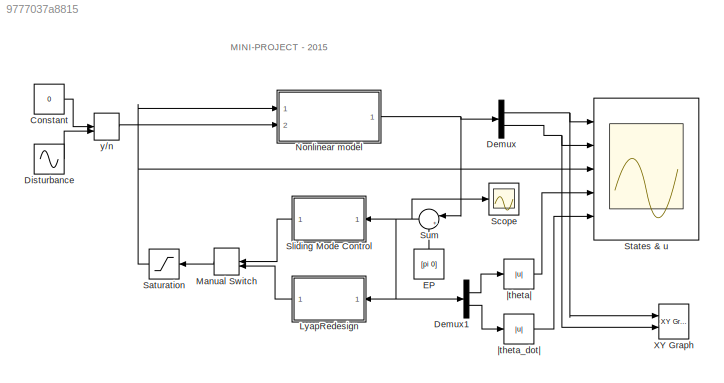
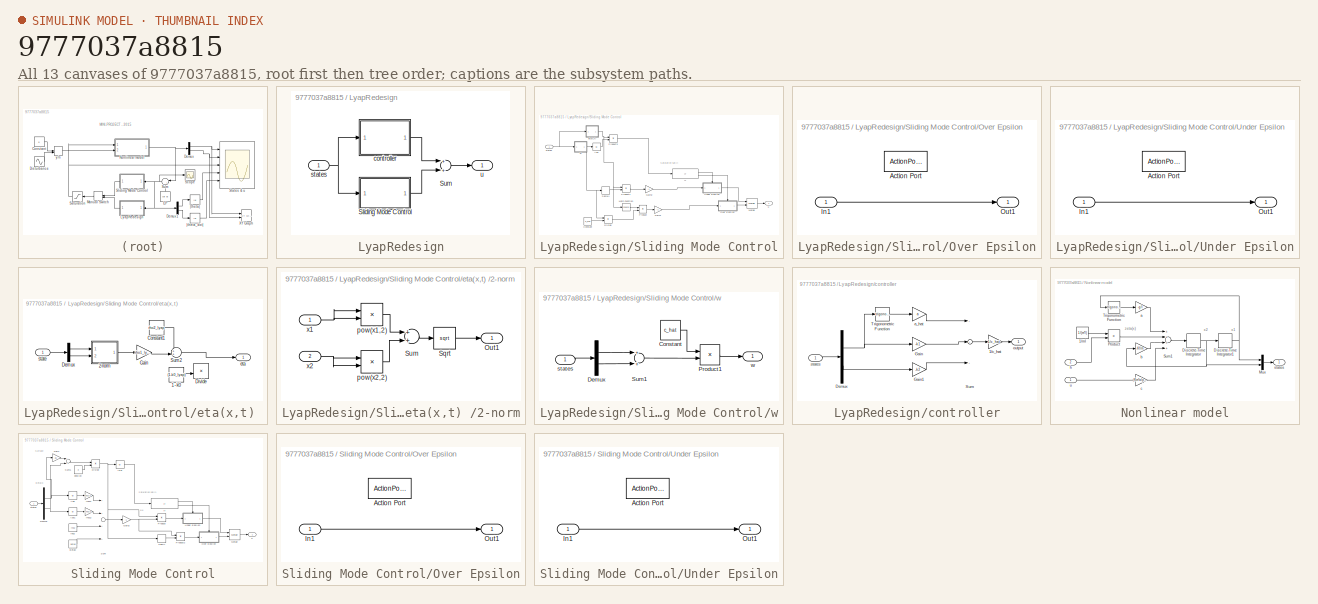
[diagram: thumbnail index - all 13 canvases of the model, root first then tree order]
MODEL slx_9777037a8815
KIND model
CONFIG AbsTol = auto
CONFIG FixedStep = auto
CONFIG InitFcn = run smc.m\nrun lyapRedesign.m 
CONFIG MaxStep = auto
CONFIG MinStep = auto
CONFIG RelTol = 1e-3
CONFIG SampleTimeConstraint = Unconstrained
CONFIG Solver = VariableStepAuto
CONFIG SolverMode = Auto
CONFIG SolverName = VariableStepAuto
CONFIG StartTime = 0.0
CONFIG StopTime = 10
BLOCK [Constant] Constant
  Value = 0
BLOCK [Demux] Demux
  DisplayOption = bar
  Outputs = 2
  Ports = [1, 2]
BLOCK [Demux] Demux1
  DisplayOption = bar
  Outputs = 2
  Ports = [1, 2]
BLOCK [Sin] Disturbance
  Amplitude = Km*A*5/2000
  Ports = [0, 1]
  SampleTime = 0
BLOCK [Constant] EP
  Value = [pi 0]
BLOCK [SubSystem] LyapRedesign
  Ports = [1, 1]
  RequestExecContextInheritance = off
  Variant = off
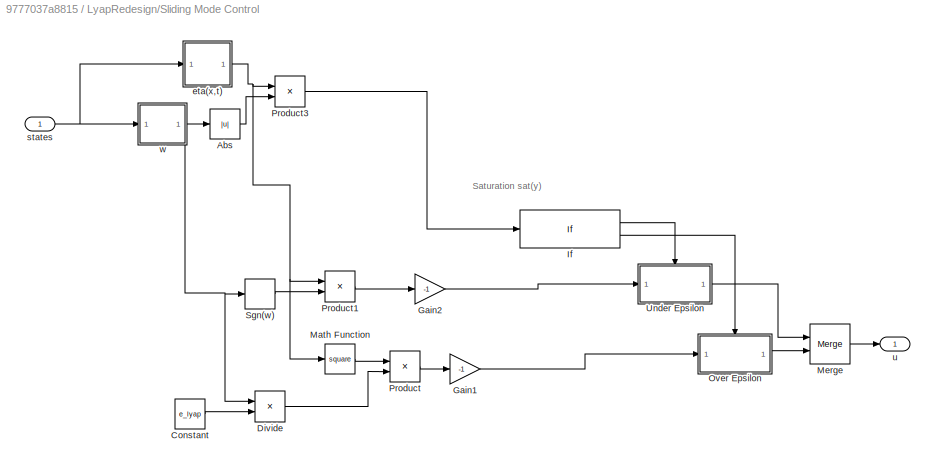
BLOCK [SubSystem] LyapRedesign/Sliding Mode Control
  Ports = [1, 1]
  RequestExecContextInheritance = off
  Variant = off
BLOCK [Abs] LyapRedesign/Sliding Mode Control/Abs
  SaturateOnIntegerOverflow = off
BLOCK [Constant] LyapRedesign/Sliding Mode Control/Constant
  Value = e_lyap
BLOCK [Product] LyapRedesign/Sliding Mode Control/Divide
  InputSameDT = off
  Inputs = */
  OutDataTypeStr = Inherit: Inherit via internal rule
  Ports = [2, 1]
  RndMeth = Floor
  SaturateOnIntegerOverflow = off
BLOCK [Gain] LyapRedesign/Sliding Mode Control/Gain1
  Gain = -1
  OutDataTypeStr = Inherit: Inherit via internal rule
  ParamDataTypeStr = Inherit: Inherit via internal rule
  SaturateOnIntegerOverflow = off
BLOCK [Gain] LyapRedesign/Sliding Mode Control/Gain2
  Gain = -1
  OutDataTypeStr = Inherit: Inherit via internal rule
  ParamDataTypeStr = Inherit: Inherit via internal rule
  SaturateOnIntegerOverflow = off
BLOCK [If] LyapRedesign/Sliding Mode Control/If
  ElseIfExpressions = u1 < e_lyap
  IfExpression = u1 >= e_lyap
  Ports = [1, 2]
  ShowElse = off
  ZeroCross = off
BLOCK [Math] LyapRedesign/Sliding Mode Control/Math Function
  Operator = square
  Ports = [1, 1]
BLOCK [Merge] LyapRedesign/Sliding Mode Control/Merge
  Ports = [2, 1]
BLOCK [SubSystem] LyapRedesign/Sliding Mode Control/Over Epsilon
  Ports = [1, 1, 0, 0, 0, 0, 0, 1]
  RequestExecContextInheritance = off
  TreatAsAtomicUnit = on
  Variant = off
BLOCK [ActionPort] LyapRedesign/Sliding Mode Control/Over Epsilon/Action Port
  ActionType = elseif
BLOCK [Inport] LyapRedesign/Sliding Mode Control/Over Epsilon/In1
  IconDisplay = Port number
BLOCK [Outport] LyapRedesign/Sliding Mode Control/Over Epsilon/Out1
  IconDisplay = Port number
BLOCK [Product] LyapRedesign/Sliding Mode Control/Product
  InputSameDT = off
  OutDataTypeStr = Inherit: Inherit via internal rule
  Ports = [2, 1]
  RndMeth = Floor
  SaturateOnIntegerOverflow = off
BLOCK [Product] LyapRedesign/Sliding Mode Control/Product1
  InputSameDT = off
  OutDataTypeStr = Inherit: Inherit via internal rule
  Ports = [2, 1]
  RndMeth = Floor
  SaturateOnIntegerOverflow = off
BLOCK [Product] LyapRedesign/Sliding Mode Control/Product3
  InputSameDT = off
  OutDataTypeStr = Inherit: Inherit via internal rule
  Ports = [2, 1]
  RndMeth = Floor
  SaturateOnIntegerOverflow = off
BLOCK [Signum] LyapRedesign/Sliding Mode Control/Sgn(w)
BLOCK [SubSystem] LyapRedesign/Sliding Mode Control/Under Epsilon
  Ports = [1, 1, 0, 0, 0, 0, 0, 1]
  RequestExecContextInheritance = off
  TreatAsAtomicUnit = on
  Variant = off
BLOCK [ActionPort] LyapRedesign/Sliding Mode Control/Under Epsilon/Action Port
  ActionType = then
BLOCK [Inport] LyapRedesign/Sliding Mode Control/Under Epsilon/In1
  IconDisplay = Port number
BLOCK [Outport] LyapRedesign/Sliding Mode Control/Under Epsilon/Out1
  IconDisplay = Port number
BLOCK [SubSystem] LyapRedesign/Sliding Mode Control/eta(x,t) 
  Ports = [1, 1]
  RequestExecContextInheritance = off
  Variant = off
BLOCK [Constant] LyapRedesign/Sliding Mode Control/eta(x,t) /1 - k0
  Value = (1-k0_lyap)
BLOCK [SubSystem] LyapRedesign/Sliding Mode Control/eta(x,t) /2-norm
  Ports = [2, 1]
  RequestExecContextInheritance = off
  Variant = off
BLOCK [Outport] LyapRedesign/Sliding Mode Control/eta(x,t) /2-norm/Out1
  IconDisplay = Port number
BLOCK [Sqrt] LyapRedesign/Sliding Mode Control/eta(x,t) /2-norm/Sqrt
BLOCK [Sum] LyapRedesign/Sliding Mode Control/eta(x,t) /2-norm/Sum
  InputSameDT = off
  OutDataTypeStr = Inherit: Inherit via internal rule
  Ports = [2, 1]
  SaturateOnIntegerOverflow = off
BLOCK [Product] LyapRedesign/Sliding Mode Control/eta(x,t) /2-norm/pow(x1,2)
  InputSameDT = off
  OutDataTypeStr = Inherit: Inherit via internal rule
  Ports = [2, 1]
  RndMeth = Floor
  SaturateOnIntegerOverflow = off
BLOCK [Product] LyapRedesign/Sliding Mode Control/eta(x,t) /2-norm/pow(x2,2)
  InputSameDT = off
  OutDataTypeStr = Inherit: Inherit via internal rule
  Ports = [2, 1]
  RndMeth = Floor
  SaturateOnIntegerOverflow = off
BLOCK [Inport] LyapRedesign/Sliding Mode Control/eta(x,t) /2-norm/x1
  IconDisplay = Port number
BLOCK [Inport] LyapRedesign/Sliding Mode Control/eta(x,t) /2-norm/x2
  IconDisplay = Port number
  Port = 2
BLOCK [Constant] LyapRedesign/Sliding Mode Control/eta(x,t) /Constant1
  Value = rho2_lyap
BLOCK [Demux] LyapRedesign/Sliding Mode Control/eta(x,t) /Demux
  DisplayOption = bar
  Outputs = 2
  Ports = [1, 2]
BLOCK [Product] LyapRedesign/Sliding Mode Control/eta(x,t) /Divide
  InputSameDT = off
  Inputs = */
  OutDataTypeStr = Inherit: Inherit via internal rule
  Ports = [2, 1]
  RndMeth = Floor
  SaturateOnIntegerOverflow = off
BLOCK [Gain] LyapRedesign/Sliding Mode Control/eta(x,t) /Gain
  Gain = rho1_lyap
  OutDataTypeStr = Inherit: Inherit via internal rule
  ParamDataTypeStr = Inherit: Inherit via internal rule
  SaturateOnIntegerOverflow = off
BLOCK [Sum] LyapRedesign/Sliding Mode Control/eta(x,t) /Sum2
  IconShape = round
  InputSameDT = off
  Inputs = ++|
  OutDataTypeStr = Inherit: Inherit via internal rule
  Ports = [2, 1]
  SaturateOnIntegerOverflow = off
BLOCK [Outport] LyapRedesign/Sliding Mode Control/eta(x,t) /eta
  IconDisplay = Port number
BLOCK [Inport] LyapRedesign/Sliding Mode Control/eta(x,t) /state
  IconDisplay = Port number
BLOCK [Inport] LyapRedesign/Sliding Mode Control/states
  IconDisplay = Port number
BLOCK [Outport] LyapRedesign/Sliding Mode Control/u
  IconDisplay = Port number
BLOCK [SubSystem] LyapRedesign/Sliding Mode Control/w
  Ports = [1, 1]
  RequestExecContextInheritance = off
  Variant = off
BLOCK [Constant] LyapRedesign/Sliding Mode Control/w/Constant
  Value = c_hat
BLOCK [Demux] LyapRedesign/Sliding Mode Control/w/Demux
  DisplayOption = bar
  Outputs = 2
  Ports = [1, 2]
BLOCK [Product] LyapRedesign/Sliding Mode Control/w/Product1
  InputSameDT = off
  OutDataTypeStr = Inherit: Inherit via internal rule
  Ports = [2, 1]
  RndMeth = Floor
  SaturateOnIntegerOverflow = off
BLOCK [Sum] LyapRedesign/Sliding Mode Control/w/Sum1
  InputSameDT = off
  OutDataTypeStr = Inherit: Inherit via internal rule
  Ports = [2, 1]
  SaturateOnIntegerOverflow = off
BLOCK [Inport] LyapRedesign/Sliding Mode Control/w/states
  IconDisplay = Port number
BLOCK [Outport] LyapRedesign/Sliding Mode Control/w/w
  IconDisplay = Port number
BLOCK [Sum] LyapRedesign/Sum
  InputSameDT = off
  OutDataTypeStr = Inherit: Inherit via internal rule
  Ports = [2, 1]
  SaturateOnIntegerOverflow = off
BLOCK [SubSystem] LyapRedesign/controller
  Ports = [1, 1]
  RequestExecContextInheritance = off
  Variant = off
BLOCK [Gain] LyapRedesign/controller/1//c_hat
  Gain = 1/c_hat
  OutDataTypeStr = Inherit: Inherit via internal rule
  ParamDataTypeStr = Inherit: Inherit via internal rule
  SaturateOnIntegerOverflow = off
BLOCK [Demux] LyapRedesign/controller/Demux
  DisplayOption = bar
  Outputs = 2
  Ports = [1, 2]
BLOCK [Gain] LyapRedesign/controller/Gain
  Gain = -k1
  OutDataTypeStr = Inherit: Inherit via internal rule
  ParamDataTypeStr = Inherit: Inherit via internal rule
  SaturateOnIntegerOverflow = off
BLOCK [Gain] LyapRedesign/controller/Gain1
  Gain = -k2
  OutDataTypeStr = Inherit: Inherit via internal rule
  ParamDataTypeStr = Inherit: Inherit via internal rule
  SaturateOnIntegerOverflow = off
BLOCK [Sum] LyapRedesign/controller/Sum
  InputSameDT = off
  Inputs = +++
  OutDataTypeStr = Inherit: Inherit via internal rule
  Ports = [3, 1]
  SaturateOnIntegerOverflow = off
BLOCK [Trigonometry] LyapRedesign/controller/Trigonometric Function
  Ports = [1, 1]
BLOCK [Gain] LyapRedesign/controller/a_hat
  Gain = a
  OutDataTypeStr = Inherit: Inherit via internal rule
  ParamDataTypeStr = Inherit: Inherit via internal rule
  SaturateOnIntegerOverflow = off
BLOCK [Outport] LyapRedesign/controller/output
  IconDisplay = Port number
BLOCK [Inport] LyapRedesign/controller/states
  IconDisplay = Port number
BLOCK [Inport] LyapRedesign/states
  IconDisplay = Port number
BLOCK [Outport] LyapRedesign/u
  IconDisplay = Port number
BLOCK [ManualSwitch] Manual Switch
BLOCK [SubSystem] Nonlinear model
  Ports = [2, 1]
  RequestExecContextInheritance = off
  Variant = off
BLOCK [Constant] Nonlinear model/1//ml
  Value = 1/(m*l)
BLOCK [DiscreteIntegrator] Nonlinear model/Discrete-Time Integrator
  ICPrevOutput = DiscIntNeverNeededParam
  ICPrevScaledInput = DiscIntNeverNeededParam
  InitialConditionSetting = State (most efficient)
  Ports = [1, 1]
  SampleTime = dt
BLOCK [DiscreteIntegrator] Nonlinear model/Discrete-Time Integrator1
  ICPrevOutput = DiscIntNeverNeededParam
  ICPrevScaledInput = DiscIntNeverNeededParam
  InitialConditionSetting = State (most efficient)
  Ports = [1, 1]
  SampleTime = dt
BLOCK [Mux] Nonlinear model/Mux
  DisplayOption = bar
  Inputs = 2
  Ports = [2, 1]
BLOCK [Product] Nonlinear model/Product
  InputSameDT = off
  OutDataTypeStr = Inherit: Inherit via internal rule
  Ports = [2, 1]
  RndMeth = Floor
  SaturateOnIntegerOverflow = off
BLOCK [Sum] Nonlinear model/Sum1
  InputSameDT = off
  Inputs = ++++
  OutDataTypeStr = Inherit: Inherit via internal rule
  Ports = [4, 1]
  SaturateOnIntegerOverflow = off
BLOCK [Trigonometry] Nonlinear model/Trigonometric Function
  Ports = [1, 1]
BLOCK [Gain] Nonlinear model/a
  Gain = -g/l
  OutDataTypeStr = Inherit: Inherit via internal rule
  ParamDataTypeStr = Inherit: Inherit via internal rule
  SaturateOnIntegerOverflow = off
BLOCK [Gain] Nonlinear model/b
  Gain = -Kf/m
  OutDataTypeStr = Inherit: Inherit via internal rule
  ParamDataTypeStr = Inherit: Inherit via internal rule
  SaturateOnIntegerOverflow = off
BLOCK [Gain] Nonlinear model/c
  Gain = (Km*alpha)/(m*l^2)
  OutDataTypeStr = Inherit: Inherit via internal rule
  ParamDataTypeStr = Inherit: Inherit via internal rule
  SaturateOnIntegerOverflow = off
BLOCK [Inport] Nonlinear model/h
  IconDisplay = Port number
  Port = 2
BLOCK [Outport] Nonlinear model/states
  IconDisplay = Port number
BLOCK [Inport] Nonlinear model/u
  IconDisplay = Port number
BLOCK [Saturate] Saturation
  InputPortMap = u0
  LowerLimit = -2000
  Ports = [1, 1]
  UpperLimit = 2000
BLOCK [Scope] Scope
  Ports = [1]
  ScopeSpecificationString = Simulink.scopes.TimeScopeBlockCfg('CurrentConfiguration', extmgr.ConfigurationSet(extmgr.Configuration('Core','General UI',true),extmgr.Configuration('Core','Source UI',true),extmgr.Configuration('Sources','WiredSimulink',true,'DataLoggingVariableName','ScopeData1'),extmgr.Configuration('Visuals','Time Domain',true,'SerializedDisplays',{struct('MinYLimReal','-9.79224','MaxYLimReal','4.57868','YLab...<+1401ch>
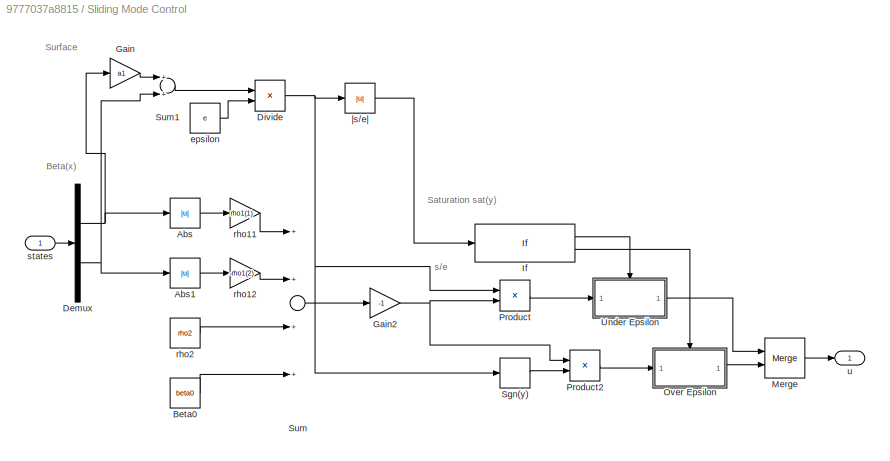
BLOCK [SubSystem] Sliding Mode Control
  Ports = [1, 1]
  RequestExecContextInheritance = off
  Variant = off
BLOCK [Abs] Sliding Mode Control/Abs
  SaturateOnIntegerOverflow = off
BLOCK [Abs] Sliding Mode Control/Abs1
  SaturateOnIntegerOverflow = off
BLOCK [Constant] Sliding Mode Control/Beta0
  Value = beta0
BLOCK [Demux] Sliding Mode Control/Demux
  DisplayOption = bar
  Outputs = 2
  Ports = [1, 2]
BLOCK [Product] Sliding Mode Control/Divide
  InputSameDT = off
  Inputs = */
  OutDataTypeStr = Inherit: Inherit via internal rule
  Ports = [2, 1]
  RndMeth = Floor
  SaturateOnIntegerOverflow = off
BLOCK [Gain] Sliding Mode Control/Gain
  Gain = a1
  OutDataTypeStr = Inherit: Inherit via internal rule
  ParamDataTypeStr = Inherit: Inherit via internal rule
  SaturateOnIntegerOverflow = off
BLOCK [Gain] Sliding Mode Control/Gain2
  Gain = -1
  OutDataTypeStr = Inherit: Inherit via internal rule
  ParamDataTypeStr = Inherit: Inherit via internal rule
  SaturateOnIntegerOverflow = off
BLOCK [If] Sliding Mode Control/If
  ElseIfExpressions = u1 > 1
  IfExpression = u1 <= 1
  Ports = [1, 2]
  ShowElse = off
  ZeroCross = off
BLOCK [Merge] Sliding Mode Control/Merge
  Ports = [2, 1]
BLOCK [SubSystem] Sliding Mode Control/Over Epsilon
  Ports = [1, 1, 0, 0, 0, 0, 0, 1]
  RequestExecContextInheritance = off
  TreatAsAtomicUnit = on
  Variant = off
BLOCK [ActionPort] Sliding Mode Control/Over Epsilon/Action Port
  ActionType = elseif
BLOCK [Inport] Sliding Mode Control/Over Epsilon/In1
  IconDisplay = Port number
BLOCK [Outport] Sliding Mode Control/Over Epsilon/Out1
  IconDisplay = Port number
BLOCK [Product] Sliding Mode Control/Product
  InputSameDT = off
  OutDataTypeStr = Inherit: Inherit via internal rule
  Ports = [2, 1]
  RndMeth = Floor
  SaturateOnIntegerOverflow = off
BLOCK [Product] Sliding Mode Control/Product2
  InputSameDT = off
  OutDataTypeStr = Inherit: Inherit via internal rule
  Ports = [2, 1]
  RndMeth = Floor
  SaturateOnIntegerOverflow = off
BLOCK [Signum] Sliding Mode Control/Sgn(y)
BLOCK [Sum] Sliding Mode Control/Sum
  InputSameDT = off
  Inputs = ++++
  OutDataTypeStr = Inherit: Inherit via internal rule
  Ports = [4, 1]
  SaturateOnIntegerOverflow = off
BLOCK [Sum] Sliding Mode Control/Sum1
  InputSameDT = off
  OutDataTypeStr = Inherit: Inherit via internal rule
  Ports = [2, 1]
  SaturateOnIntegerOverflow = off
BLOCK [SubSystem] Sliding Mode Control/Under Epsilon
  Ports = [1, 1, 0, 0, 0, 0, 0, 1]
  RequestExecContextInheritance = off
  TreatAsAtomicUnit = on
  Variant = off
BLOCK [ActionPort] Sliding Mode Control/Under Epsilon/Action Port
  ActionType = then
BLOCK [Inport] Sliding Mode Control/Under Epsilon/In1
  IconDisplay = Port number
BLOCK [Outport] Sliding Mode Control/Under Epsilon/Out1
  IconDisplay = Port number
BLOCK [Constant] Sliding Mode Control/epsilon
  Value = e
BLOCK [Gain] Sliding Mode Control/rho11
  Gain = rho1(1)
  OutDataTypeStr = Inherit: Inherit via internal rule
  ParamDataTypeStr = Inherit: Inherit via internal rule
  SaturateOnIntegerOverflow = off
BLOCK [Gain] Sliding Mode Control/rho12
  Gain = -rho1(2)
  OutDataTypeStr = Inherit: Inherit via internal rule
  ParamDataTypeStr = Inherit: Inherit via internal rule
  SaturateOnIntegerOverflow = off
BLOCK [Constant] Sliding Mode Control/rho2
  Value = rho2
BLOCK [Inport] Sliding Mode Control/states
  IconDisplay = Port number
BLOCK [Outport] Sliding Mode Control/u
  IconDisplay = Port number
BLOCK [Abs] Sliding Mode Control/|s//e|
  SaturateOnIntegerOverflow = off
BLOCK [Scope] States & u
  NumInputPorts = 5
  Ports = [5]
  ScopeSpecificationString = Simulink.scopes.TimeScopeBlockCfg('CurrentConfiguration', extmgr.ConfigurationSet(extmgr.Configuration('Core','General UI',true,'FigureColor',[1 1 1]),extmgr.Configuration('Core','Source UI',true),extmgr.Configuration('Sources','WiredSimulink',true),extmgr.Configuration('Visuals','Time Domain',true,'PlotType','Line','SerializedDisplays',{struct('MinYLimReal','-0.43682','MaxYLimReal','3.93141','YLa...<+5620ch>
BLOCK [Sum] Sum
  IconShape = round
  InputSameDT = off
  Inputs = |++
  OutDataTypeStr = Inherit: Inherit via internal rule
  Ports = [2, 1]
  SaturateOnIntegerOverflow = off
BLOCK [Reference] XY Graph  REF=simulink/Sinks/XY Graph
  Commented = on
  Ports = [2]
  SourceBlock = simulink/Sinks/XY Graph
  SourceType = XY scope.
BLOCK [ManualSwitch] y//n
  CurrentSetting = 0
BLOCK [Abs] |theta_dot|
  SaturateOnIntegerOverflow = off
BLOCK [Abs] |theta|
  SaturateOnIntegerOverflow = off
ANNOTATION (root): MINI-PROJECT - 2015
ANNOTATION LyapRedesign/Sliding Mode Control: Saturation sat(y)
ANNOTATION Nonlinear model: x1
ANNOTATION Nonlinear model: x2
ANNOTATION Nonlinear model: zeta(x)
ANNOTATION Sliding Mode Control: Beta(x)
ANNOTATION Sliding Mode Control: Saturation sat(y)
ANNOTATION Sliding Mode Control: Surface
ANNOTATION Sliding Mode Control: s/e
LINE Constant:1 -> y//n:1
LINE Demux1:1 -> |theta|:1
LINE Demux1:2 -> |theta_dot|:1
NET Demux:1 -> States & u:1, XY Graph:1
NET Demux:2 -> States & u:2, XY Graph:2
LINE Disturbance:1 -> y//n:2
LINE EP:1 -> Sum:2
LINE LyapRedesign/Sliding Mode Control/Abs:1 -> LyapRedesign/Sliding Mode Control/Product3:2
LINE LyapRedesign/Sliding Mode Control/Constant:1 -> LyapRedesign/Sliding Mode Control/Divide:2
LINE LyapRedesign/Sliding Mode Control/Divide:1 -> LyapRedesign/Sliding Mode Control/Product:2
LINE LyapRedesign/Sliding Mode Control/Gain1:1 -> LyapRedesign/Sliding Mode Control/Over Epsilon:1
LINE LyapRedesign/Sliding Mode Control/Gain2:1 -> LyapRedesign/Sliding Mode Control/Under Epsilon:1
LINE LyapRedesign/Sliding Mode Control/If:1 -> LyapRedesign/Sliding Mode Control/Under Epsilon:ifaction
LINE LyapRedesign/Sliding Mode Control/If:2 -> LyapRedesign/Sliding Mode Control/Over Epsilon:ifaction
LINE LyapRedesign/Sliding Mode Control/Math Function:1 -> LyapRedesign/Sliding Mode Control/Product:1
LINE LyapRedesign/Sliding Mode Control/Merge:1 -> LyapRedesign/Sliding Mode Control/u:1
LINE LyapRedesign/Sliding Mode Control/Over Epsilon/In1:1 -> LyapRedesign/Sliding Mode Control/Over Epsilon/Out1:1
LINE LyapRedesign/Sliding Mode Control/Over Epsilon:1 -> LyapRedesign/Sliding Mode Control/Merge:2
LINE LyapRedesign/Sliding Mode Control/Product1:1 -> LyapRedesign/Sliding Mode Control/Gain2:1
LINE LyapRedesign/Sliding Mode Control/Product3:1 -> LyapRedesign/Sliding Mode Control/If:1
LINE LyapRedesign/Sliding Mode Control/Product:1 -> LyapRedesign/Sliding Mode Control/Gain1:1
LINE LyapRedesign/Sliding Mode Control/Sgn(w):1 -> LyapRedesign/Sliding Mode Control/Product1:2
LINE LyapRedesign/Sliding Mode Control/Under Epsilon/In1:1 -> LyapRedesign/Sliding Mode Control/Under Epsilon/Out1:1
LINE LyapRedesign/Sliding Mode Control/Under Epsilon:1 -> LyapRedesign/Sliding Mode Control/Merge:1
LINE LyapRedesign/Sliding Mode Control/eta(x,t) /1 - k0:1 -> LyapRedesign/Sliding Mode Control/eta(x,t) /Divide:2
LINE LyapRedesign/Sliding Mode Control/eta(x,t) /2-norm/Sqrt:1 -> LyapRedesign/Sliding Mode Control/eta(x,t) /2-norm/Out1:1
LINE LyapRedesign/Sliding Mode Control/eta(x,t) /2-norm/Sum:1 -> LyapRedesign/Sliding Mode Control/eta(x,t) /2-norm/Sqrt:1
LINE LyapRedesign/Sliding Mode Control/eta(x,t) /2-norm/pow(x1,2):1 -> LyapRedesign/Sliding Mode Control/eta(x,t) /2-norm/Sum:1
LINE LyapRedesign/Sliding Mode Control/eta(x,t) /2-norm/pow(x2,2):1 -> LyapRedesign/Sliding Mode Control/eta(x,t) /2-norm/Sum:2
NET LyapRedesign/Sliding Mode Control/eta(x,t) /2-norm/x1:1 -> LyapRedesign/Sliding Mode Control/eta(x,t) /2-norm/pow(x1,2):1, LyapRedesign/Sliding Mode Control/eta(x,t) /2-norm/pow(x1,2):2
NET LyapRedesign/Sliding Mode Control/eta(x,t) /2-norm/x2:1 -> LyapRedesign/Sliding Mode Control/eta(x,t) /2-norm/pow(x2,2):1, LyapRedesign/Sliding Mode Control/eta(x,t) /2-norm/pow(x2,2):2
LINE LyapRedesign/Sliding Mode Control/eta(x,t) /2-norm:1 -> LyapRedesign/Sliding Mode Control/eta(x,t) /Gain:1
LINE LyapRedesign/Sliding Mode Control/eta(x,t) /Constant1:1 -> LyapRedesign/Sliding Mode Control/eta(x,t) /Sum2:1
LINE LyapRedesign/Sliding Mode Control/eta(x,t) /Demux:1 -> LyapRedesign/Sliding Mode Control/eta(x,t) /2-norm:1
LINE LyapRedesign/Sliding Mode Control/eta(x,t) /Demux:2 -> LyapRedesign/Sliding Mode Control/eta(x,t) /2-norm:2
LINE LyapRedesign/Sliding Mode Control/eta(x,t) /Gain:1 -> LyapRedesign/Sliding Mode Control/eta(x,t) /Sum2:2
LINE LyapRedesign/Sliding Mode Control/eta(x,t) /Sum2:1 -> LyapRedesign/Sliding Mode Control/eta(x,t) /eta:1
LINE LyapRedesign/Sliding Mode Control/eta(x,t) /state:1 -> LyapRedesign/Sliding Mode Control/eta(x,t) /Demux:1
NET LyapRedesign/Sliding Mode Control/eta(x,t) :1 -> LyapRedesign/Sliding Mode Control/Math Function:1, LyapRedesign/Sliding Mode Control/Product1:1, LyapRedesign/Sliding Mode Control/Product3:1
NET LyapRedesign/Sliding Mode Control/states:1 -> LyapRedesign/Sliding Mode Control/eta(x,t) :1, LyapRedesign/Sliding Mode Control/w:1
LINE LyapRedesign/Sliding Mode Control/w/Constant:1 -> LyapRedesign/Sliding Mode Control/w/Product1:1
LINE LyapRedesign/Sliding Mode Control/w/Demux:1 -> LyapRedesign/Sliding Mode Control/w/Sum1:1
LINE LyapRedesign/Sliding Mode Control/w/Demux:2 -> LyapRedesign/Sliding Mode Control/w/Sum1:2
LINE LyapRedesign/Sliding Mode Control/w/Product1:1 -> LyapRedesign/Sliding Mode Control/w/w:1
LINE LyapRedesign/Sliding Mode Control/w/Sum1:1 -> LyapRedesign/Sliding Mode Control/w/Product1:2
LINE LyapRedesign/Sliding Mode Control/w/states:1 -> LyapRedesign/Sliding Mode Control/w/Demux:1
NET LyapRedesign/Sliding Mode Control/w:1 -> LyapRedesign/Sliding Mode Control/Abs:1, LyapRedesign/Sliding Mode Control/Divide:1, LyapRedesign/Sliding Mode Control/Sgn(w):1
LINE LyapRedesign/Sliding Mode Control:1 -> LyapRedesign/Sum:2
LINE LyapRedesign/Sum:1 -> LyapRedesign/u:1
LINE LyapRedesign/controller/1//c_hat:1 -> LyapRedesign/controller/output:1
NET LyapRedesign/controller/Demux:1 -> LyapRedesign/controller/Gain:1, LyapRedesign/controller/Trigonometric Function:1
LINE LyapRedesign/controller/Demux:2 -> LyapRedesign/controller/Gain1:1
LINE LyapRedesign/controller/Gain1:1 -> LyapRedesign/controller/Sum:3
LINE LyapRedesign/controller/Gain:1 -> LyapRedesign/controller/Sum:2
LINE LyapRedesign/controller/Sum:1 -> LyapRedesign/controller/1//c_hat:1
LINE LyapRedesign/controller/Trigonometric Function:1 -> LyapRedesign/controller/a_hat:1
LINE LyapRedesign/controller/a_hat:1 -> LyapRedesign/controller/Sum:1
LINE LyapRedesign/controller/states:1 -> LyapRedesign/controller/Demux:1
LINE LyapRedesign/controller:1 -> LyapRedesign/Sum:1
NET LyapRedesign/states:1 -> LyapRedesign/Sliding Mode Control:1, LyapRedesign/controller:1
LINE LyapRedesign:1 -> Manual Switch:2
LINE Manual Switch:1 -> Saturation:1
LINE Nonlinear model/1//ml:1 -> Nonlinear model/Product:1
NET Nonlinear model/Discrete-Time Integrator1:1 -> Nonlinear model/Mux:1, Nonlinear model/Trigonometric Function:1
NET Nonlinear model/Discrete-Time Integrator:1 -> Nonlinear model/Discrete-Time Integrator1:1, Nonlinear model/Mux:2, Nonlinear model/b:1
LINE Nonlinear model/Mux:1 -> Nonlinear model/states:1
LINE Nonlinear model/Product:1 -> Nonlinear model/Sum1:2
LINE Nonlinear model/Sum1:1 -> Nonlinear model/Discrete-Time Integrator:1
LINE Nonlinear model/Trigonometric Function:1 -> Nonlinear model/a:1
LINE Nonlinear model/a:1 -> Nonlinear model/Sum1:1
LINE Nonlinear model/b:1 -> Nonlinear model/Sum1:3
LINE Nonlinear model/c:1 -> Nonlinear model/Sum1:4
LINE Nonlinear model/h:1 -> Nonlinear model/Product:2
LINE Nonlinear model/u:1 -> Nonlinear model/c:1
NET Nonlinear model:1 -> Demux:1, Sum:1
NET Saturation:1 -> Nonlinear model:1, States & u:3
LINE Sliding Mode Control/Abs1:1 -> Sliding Mode Control/rho12:1
LINE Sliding Mode Control/Abs:1 -> Sliding Mode Control/rho11:1
LINE Sliding Mode Control/Beta0:1 -> Sliding Mode Control/Sum:4
NET Sliding Mode Control/Demux:1 -> Sliding Mode Control/Abs:1, Sliding Mode Control/Gain:1
NET Sliding Mode Control/Demux:2 -> Sliding Mode Control/Abs1:1, Sliding Mode Control/Sum1:2
NET Sliding Mode Control/Divide:1 -> Sliding Mode Control/Product:1, Sliding Mode Control/Sgn(y):1, Sliding Mode Control/|s//e|:1
NET Sliding Mode Control/Gain2:1 -> Sliding Mode Control/Product2:1, Sliding Mode Control/Product:2
LINE Sliding Mode Control/Gain:1 -> Sliding Mode Control/Sum1:1
LINE Sliding Mode Control/If:1 -> Sliding Mode Control/Under Epsilon:ifaction
LINE Sliding Mode Control/If:2 -> Sliding Mode Control/Over Epsilon:ifaction
LINE Sliding Mode Control/Merge:1 -> Sliding Mode Control/u:1
LINE Sliding Mode Control/Over Epsilon/In1:1 -> Sliding Mode Control/Over Epsilon/Out1:1
LINE Sliding Mode Control/Over Epsilon:1 -> Sliding Mode Control/Merge:2
LINE Sliding Mode Control/Product2:1 -> Sliding Mode Control/Over Epsilon:1
LINE Sliding Mode Control/Product:1 -> Sliding Mode Control/Under Epsilon:1
LINE Sliding Mode Control/Sgn(y):1 -> Sliding Mode Control/Product2:2
LINE Sliding Mode Control/Sum1:1 -> Sliding Mode Control/Divide:1
LINE Sliding Mode Control/Sum:1 -> Sliding Mode Control/Gain2:1
LINE Sliding Mode Control/Under Epsilon/In1:1 -> Sliding Mode Control/Under Epsilon/Out1:1
LINE Sliding Mode Control/Under Epsilon:1 -> Sliding Mode Control/Merge:1
LINE Sliding Mode Control/epsilon:1 -> Sliding Mode Control/Divide:2
LINE Sliding Mode Control/rho11:1 -> Sliding Mode Control/Sum:1
LINE Sliding Mode Control/rho12:1 -> Sliding Mode Control/Sum:2
LINE Sliding Mode Control/rho2:1 -> Sliding Mode Control/Sum:3
LINE Sliding Mode Control/states:1 -> Sliding Mode Control/Demux:1
LINE Sliding Mode Control/|s//e|:1 -> Sliding Mode Control/If:1
LINE Sliding Mode Control:1 -> Manual Switch:1
NET Sum:1 -> Demux1:1, LyapRedesign:1, Scope:1, Sliding Mode Control:1
LINE y//n:1 -> Nonlinear model:2
LINE |theta_dot|:1 -> States & u:5
LINE |theta|:1 -> States & u:4
note: NET lines group one-source signal fan-out (src -> all destinations, sorted); 1:1 wires keep LINE
